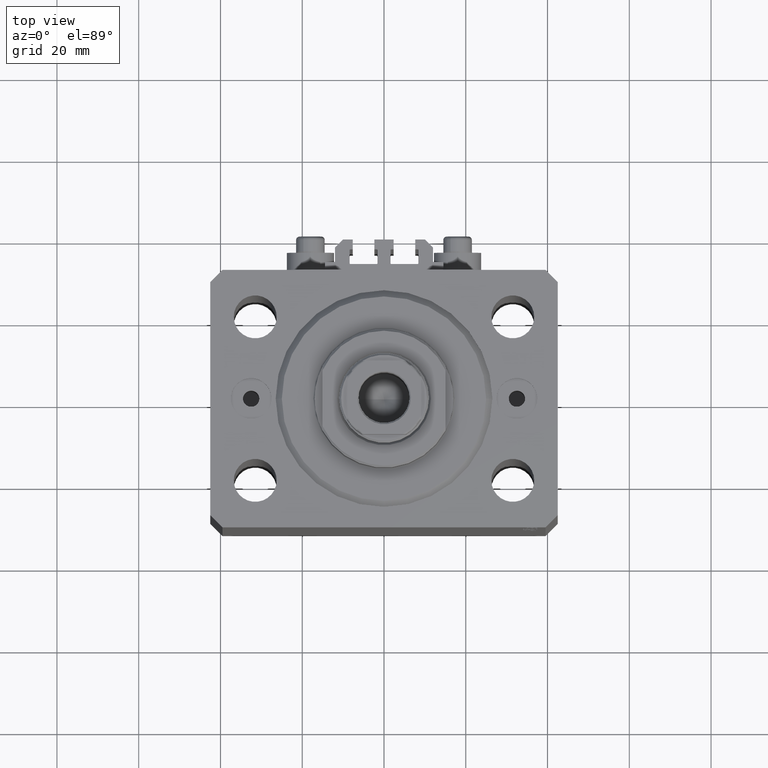
[diagram: clean part render]
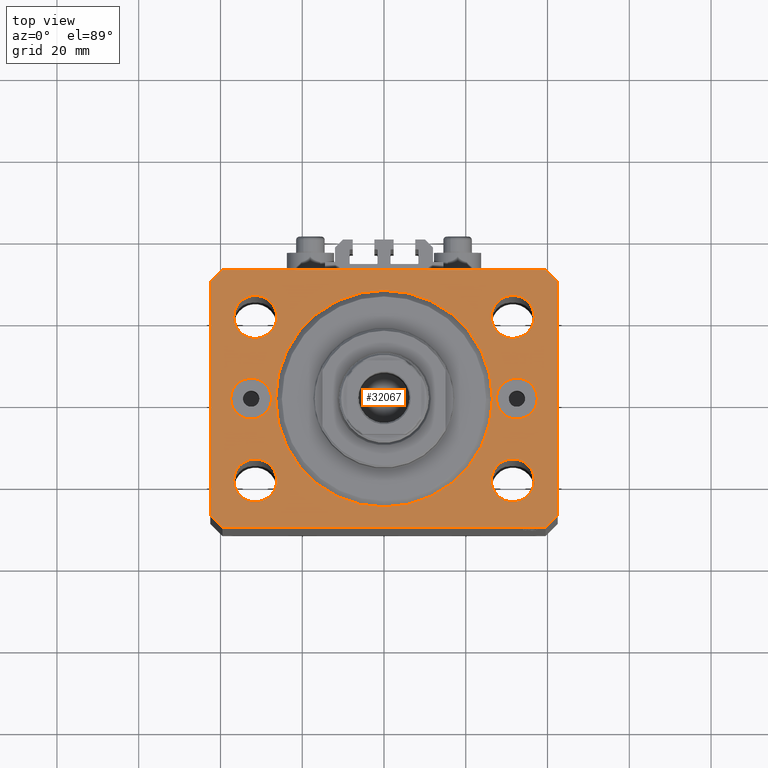
[diagram: same view with one face highlighted and labeled with its STEP entity id]
A machine part, top view. The second image highlights one B-rep face of the part: STEP entity #32067.
In plain terms, the highlighted planar face has unit normal (0, 0, 1).
Its self-contained STEP definition (entity closure, byte-faithful):
#392 = DIRECTION ( 'NONE',  ( 0.000000000000000000, -1.000000000000000000, 0.000000000000000000 ) ) ;
#770 = EDGE_CURVE ( 'NONE', #32236, #30373, #7406, .T. ) ;
#938 = VERTEX_POINT ( 'NONE', #20293 ) ;
#2301 = LINE ( 'NONE', #41471, #30841 ) ;
#2583 = FACE_BOUND ( 'NONE', #30440, .T. ) ;
#2849 = LINE ( 'NONE', #14078, #32669 ) ;
#2885 = EDGE_CURVE ( 'NONE', #13685, #13611, #2849, .T. ) ;
#2887 = DIRECTION ( 'NONE',  ( 1.000000000000000000, 0.000000000000000000, 0.000000000000000000 ) ) ;
#3045 = FACE_BOUND ( 'NONE', #31556, .T. ) ;
#3054 = AXIS2_PLACEMENT_3D ( 'NONE', #12022, #37800, #37324 ) ;
#3310 = DIRECTION ( 'NONE',  ( 0.000000000000000000, 0.000000000000000000, 1.000000000000000000 ) ) ;
#3319 = CIRCLE ( 'NONE', #21627, 5.249999999999997335 ) ;
#3467 = ORIENTED_EDGE ( 'NONE', *, *, #13510, .T. ) ;
#3515 = FACE_BOUND ( 'NONE', #9699, .T. ) ;
#4364 = DIRECTION ( 'NONE',  ( -1.000000000000000000, 0.000000000000000000, 0.000000000000000000 ) ) ;
#4750 = CARTESIAN_POINT ( 'NONE',  ( 42.50000000000000711, -28.50000000000000355, 0.000000000000000000 ) ) ;
#4973 = CARTESIAN_POINT ( 'NONE',  ( -39.50000000000000711, -31.50000000000000000, 0.000000000000000000 ) ) ;
#5253 = ORIENTED_EDGE ( 'NONE', *, *, #5370, .T. ) ;
#5370 = EDGE_CURVE ( 'NONE', #42273, #17012, #12665, .T. ) ;
#5402 = CIRCLE ( 'NONE', #32101, 26.50000000000000355 ) ;
#5526 = EDGE_CURVE ( 'NONE', #17012, #39392, #12386, .T. ) ;
#5763 = ORIENTED_EDGE ( 'NONE', *, *, #42020, .T. ) ;
#5801 = VERTEX_POINT ( 'NONE', #8492 ) ;
#6035 = DIRECTION ( 'NONE',  ( 1.000000000000000000, 0.000000000000000000, 0.000000000000000000 ) ) ;
#6063 = VERTEX_POINT ( 'NONE', #36565 ) ;
#6406 = EDGE_LOOP ( 'NONE', ( #25367, #44175 ) ) ;
#6414 = CARTESIAN_POINT ( 'NONE',  ( -39.50000000000000711, -31.50000000000000000, 0.000000000000000000 ) ) ;
#6618 = VERTEX_POINT ( 'NONE', #4750 ) ;
#6872 = CARTESIAN_POINT ( 'NONE',  ( 36.75000000000000000, 19.99999999999999289, 0.000000000000000000 ) ) ;
#7197 = EDGE_CURVE ( 'NONE', #6618, #13685, #29955, .T. ) ;
#7310 = EDGE_CURVE ( 'NONE', #10074, #16451, #20600, .T. ) ;
#7406 = CIRCLE ( 'NONE', #26478, 5.249999999999997335 ) ;
#7583 = AXIS2_PLACEMENT_3D ( 'NONE', #33662, #25790, #13696 ) ;
#7754 = CIRCLE ( 'NONE', #18459, 5.250000000000000888 ) ;
#8203 = DIRECTION ( 'NONE',  ( 1.000000000000000000, 0.000000000000000000, 0.000000000000000000 ) ) ;
#8313 = DIRECTION ( 'NONE',  ( 1.000000000000000000, 0.000000000000000000, 0.000000000000000000 ) ) ;
#8472 = CARTESIAN_POINT ( 'NONE',  ( 31.50000000000000000, 19.99999999999999289, 0.000000000000000000 ) ) ;
#8492 = CARTESIAN_POINT ( 'NONE',  ( -37.50000000000000000, 6.123233995736768255E-16, 0.000000000000000000 ) ) ;
#8653 = VERTEX_POINT ( 'NONE', #26752 ) ;
#8761 = DIRECTION ( 'NONE',  ( 0.000000000000000000, 0.000000000000000000, 1.000000000000000000 ) ) ;
#8981 = CARTESIAN_POINT ( 'NONE',  ( -39.50000000000000711, 31.50000000000000000, 0.000000000000000000 ) ) ;
#9387 = CARTESIAN_POINT ( 'NONE',  ( -42.50000000000000000, 28.50000000000000000, 0.000000000000000000 ) ) ;
#9699 = EDGE_LOOP ( 'NONE', ( #38452, #10519 ) ) ;
#9770 = EDGE_LOOP ( 'NONE', ( #24558, #40329 ) ) ;
#9976 = FACE_BOUND ( 'NONE', #6406, .T. ) ;
#10074 = VERTEX_POINT ( 'NONE', #14902 ) ;
#10213 = FACE_OUTER_BOUND ( 'NONE', #18273, .T. ) ;
#10519 = ORIENTED_EDGE ( 'NONE', *, *, #19388, .F. ) ;
#10684 = DIRECTION ( 'NONE',  ( 1.000000000000000000, 0.000000000000000000, -0.000000000000000000 ) ) ;
#10884 = CARTESIAN_POINT ( 'NONE',  ( 37.50000000000000000, 0.000000000000000000, 0.000000000000000000 ) ) ;
#11119 = DIRECTION ( 'NONE',  ( 1.000000000000000000, 0.000000000000000000, 0.000000000000000000 ) ) ;
#11737 = DIRECTION ( 'NONE',  ( 0.000000000000000000, 0.000000000000000000, 1.000000000000000000 ) ) ;
#11835 = CARTESIAN_POINT ( 'NONE',  ( 32.50000000000000000, 0.000000000000000000, 0.000000000000000000 ) ) ;
#12022 = CARTESIAN_POINT ( 'NONE',  ( -31.50000000000000000, 19.99999999999999645, 0.000000000000000000 ) ) ;
#12386 = LINE ( 'NONE', #4973, #38070 ) ;
#12507 = DIRECTION ( 'NONE',  ( 0.000000000000000000, 0.000000000000000000, 1.000000000000000000 ) ) ;
#12623 = CARTESIAN_POINT ( 'NONE',  ( 39.50000000000000711, -31.50000000000000000, 0.000000000000000000 ) ) ;
#12665 = LINE ( 'NONE', #46081, #35759 ) ;
#13380 = ORIENTED_EDGE ( 'NONE', *, *, #26023, .F. ) ;
#13510 = EDGE_CURVE ( 'NONE', #13611, #41290, #26572, .T. ) ;
#13611 = VERTEX_POINT ( 'NONE', #42072 ) ;
#13685 = VERTEX_POINT ( 'NONE', #32518 ) ;
#13690 = CARTESIAN_POINT ( 'NONE',  ( 0.000000000000000000, 0.000000000000000000, 0.000000000000000000 ) ) ;
#13696 = DIRECTION ( 'NONE',  ( 1.000000000000000000, 0.000000000000000000, 0.000000000000000000 ) ) ;
#13729 = AXIS2_PLACEMENT_3D ( 'NONE', #44669, #11737, #47116 ) ;
#13802 = CIRCLE ( 'NONE', #44284, 5.000000000000000888 ) ;
#13818 = ORIENTED_EDGE ( 'NONE', *, *, #29376, .F. ) ;
#13929 = CARTESIAN_POINT ( 'NONE',  ( -26.50000000000000355, 3.245314017740486554E-15, 0.000000000000000000 ) ) ;
#13996 = EDGE_LOOP ( 'NONE', ( #43702, #36039 ) ) ;
#14078 = CARTESIAN_POINT ( 'NONE',  ( 42.50000000000051870, 28.49999999999995381, 0.000000000000000000 ) ) ;
#14437 = CARTESIAN_POINT ( 'NONE',  ( -26.24999999999999289, -20.00000000000000355, 0.000000000000000000 ) ) ;
#14902 = CARTESIAN_POINT ( 'NONE',  ( -26.25000000000000000, 19.99999999999999645, 0.000000000000000000 ) ) ;
#15245 = AXIS2_PLACEMENT_3D ( 'NONE', #34931, #42325, #6035 ) ;
#15765 = DIRECTION ( 'NONE',  ( 0.000000000000000000, 0.000000000000000000, 1.000000000000000000 ) ) ;
#15979 = EDGE_CURVE ( 'NONE', #17800, #42273, #27539, .T. ) ;
#16085 = ORIENTED_EDGE ( 'NONE', *, *, #19652, .T. ) ;
#16152 = VERTEX_POINT ( 'NONE', #13929 ) ;
#16165 = CARTESIAN_POINT ( 'NONE',  ( -32.50000000000000000, 0.000000000000000000, 0.000000000000000000 ) ) ;
#16451 = VERTEX_POINT ( 'NONE', #26376 ) ;
#16668 = LINE ( 'NONE', #12623, #35093 ) ;
#16774 = VECTOR ( 'NONE', #44502, 1000.000000000000000 ) ;
#17012 = VERTEX_POINT ( 'NONE', #6414 ) ;
#17229 = EDGE_CURVE ( 'NONE', #5801, #8653, #27357, .T. ) ;
#17375 = FACE_BOUND ( 'NONE', #9770, .T. ) ;
#17700 = CARTESIAN_POINT ( 'NONE',  ( 26.50000000000000355, 0.000000000000000000, 0.000000000000000000 ) ) ;
#17800 = VERTEX_POINT ( 'NONE', #45817 ) ;
#18052 = DIRECTION ( 'NONE',  ( 1.000000000000000000, 0.000000000000000000, 0.000000000000000000 ) ) ;
#18078 = FACE_BOUND ( 'NONE', #27450, .T. ) ;
#18273 = EDGE_LOOP ( 'NONE', ( #3467, #5763, #35350, #5253, #36854, #16085, #32024, #30837 ) ) ;
#18367 = EDGE_CURVE ( 'NONE', #22942, #29835, #45714, .T. ) ;
#18459 = AXIS2_PLACEMENT_3D ( 'NONE', #20119, #19422, #44718 ) ;
#18704 = CARTESIAN_POINT ( 'NONE',  ( 39.50000000000056843, 31.50000000000000000, 0.000000000000000000 ) ) ;
#19388 = EDGE_CURVE ( 'NONE', #16451, #10074, #19818, .T. ) ;
#19422 = DIRECTION ( 'NONE',  ( 0.000000000000000000, 0.000000000000000000, 1.000000000000000000 ) ) ;
#19652 = EDGE_CURVE ( 'NONE', #39392, #6618, #16668, .T. ) ;
#19683 = AXIS2_PLACEMENT_3D ( 'NONE', #11835, #25458, #18052 ) ;
#19818 = CIRCLE ( 'NONE', #3054, 5.250000000000000888 ) ;
#20065 = DIRECTION ( 'NONE',  ( 0.7071067811865471286, -0.7071067811865479058, 0.000000000000000000 ) ) ;
#20119 = CARTESIAN_POINT ( 'NONE',  ( -31.49999999999999289, -20.00000000000000355, 0.000000000000000000 ) ) ;
#20293 = CARTESIAN_POINT ( 'NONE',  ( 26.25000000000000355, 19.99999999999999289, 0.000000000000000000 ) ) ;
#20600 = CIRCLE ( 'NONE', #15245, 5.250000000000000888 ) ;
#21204 = EDGE_CURVE ( 'NONE', #8653, #5801, #13802, .T. ) ;
#21430 = EDGE_CURVE ( 'NONE', #16152, #22190, #5402, .T. ) ;
#21627 = AXIS2_PLACEMENT_3D ( 'NONE', #8472, #3310, #28862 ) ;
#22140 = EDGE_CURVE ( 'NONE', #25391, #938, #38732, .T. ) ;
#22190 = VERTEX_POINT ( 'NONE', #17700 ) ;
#22335 = VECTOR ( 'NONE', #392, 1000.000000000000000 ) ;
#22942 = VERTEX_POINT ( 'NONE', #10884 ) ;
#23590 = DIRECTION ( 'NONE',  ( 0.7071067811865483499, 0.7071067811865466846, 0.000000000000000000 ) ) ;
#23628 = CARTESIAN_POINT ( 'NONE',  ( 31.49999999999999289, -20.00000000000000355, 0.000000000000000000 ) ) ;
#23632 = AXIS2_PLACEMENT_3D ( 'NONE', #28125, #36228, #10684 ) ;
#23926 = EDGE_CURVE ( 'NONE', #29835, #22942, #40269, .T. ) ;
#24558 = ORIENTED_EDGE ( 'NONE', *, *, #22140, .F. ) ;
#24670 = DIRECTION ( 'NONE',  ( 1.000000000000000000, 0.000000000000000000, 0.000000000000000000 ) ) ;
#25088 = CARTESIAN_POINT ( 'NONE',  ( 31.50000000000000000, 19.99999999999999289, 0.000000000000000000 ) ) ;
#25367 = ORIENTED_EDGE ( 'NONE', *, *, #21204, .F. ) ;
#25391 = VERTEX_POINT ( 'NONE', #6872 ) ;
#25458 = DIRECTION ( 'NONE',  ( 0.000000000000000000, -0.000000000000000000, -1.000000000000000000 ) ) ;
#25790 = DIRECTION ( 'NONE',  ( 0.000000000000000000, 0.000000000000000000, 1.000000000000000000 ) ) ;
#26023 = EDGE_CURVE ( 'NONE', #6063, #37917, #31977, .T. ) ;
#26331 = ORIENTED_EDGE ( 'NONE', *, *, #37165, .F. ) ;
#26376 = CARTESIAN_POINT ( 'NONE',  ( -36.75000000000000000, 19.99999999999999645, 0.000000000000000000 ) ) ;
#26478 = AXIS2_PLACEMENT_3D ( 'NONE', #23628, #15765, #37250 ) ;
#26544 = AXIS2_PLACEMENT_3D ( 'NONE', #25088, #28680, #2887 ) ;
#26572 = LINE ( 'NONE', #18704, #39780 ) ;
#26752 = CARTESIAN_POINT ( 'NONE',  ( -27.50000000000000000, 0.000000000000000000, 0.000000000000000000 ) ) ;
#27357 = CIRCLE ( 'NONE', #30386, 5.000000000000000888 ) ;
#27450 = EDGE_LOOP ( 'NONE', ( #28191, #13818 ) ) ;
#27539 = LINE ( 'NONE', #9387, #22335 ) ;
#28125 = CARTESIAN_POINT ( 'NONE',  ( 0.000000000000000000, 0.000000000000000000, 0.000000000000000000 ) ) ;
#28191 = ORIENTED_EDGE ( 'NONE', *, *, #770, .F. ) ;
#28444 = ORIENTED_EDGE ( 'NONE', *, *, #18367, .T. ) ;
#28639 = DIRECTION ( 'NONE',  ( -0.7071067811865356934, 0.7071067811865594521, 0.000000000000000000 ) ) ;
#28680 = DIRECTION ( 'NONE',  ( 0.000000000000000000, 0.000000000000000000, 1.000000000000000000 ) ) ;
#28835 = FACE_BOUND ( 'NONE', #13996, .T. ) ;
#28862 = DIRECTION ( 'NONE',  ( 1.000000000000000000, 0.000000000000000000, 0.000000000000000000 ) ) ;
#28930 = CIRCLE ( 'NONE', #34238, 5.249999999999997335 ) ;
#29376 = EDGE_CURVE ( 'NONE', #30373, #32236, #28930, .T. ) ;
#29503 = CARTESIAN_POINT ( 'NONE',  ( 32.50000000000000000, 0.000000000000000000, 0.000000000000000000 ) ) ;
#29835 = VERTEX_POINT ( 'NONE', #44799 ) ;
#29955 = LINE ( 'NONE', #40452, #16774 ) ;
#29963 = DIRECTION ( 'NONE',  ( 0.000000000000000000, 0.000000000000000000, 1.000000000000000000 ) ) ;
#30373 = VERTEX_POINT ( 'NONE', #46652 ) ;
#30386 = AXIS2_PLACEMENT_3D ( 'NONE', #16165, #8761, #41237 ) ;
#30440 = EDGE_LOOP ( 'NONE', ( #26331, #13380 ) ) ;
#30837 = ORIENTED_EDGE ( 'NONE', *, *, #2885, .T. ) ;
#30841 = VECTOR ( 'NONE', #38587, 1000.000000000000000 ) ;
#31556 = EDGE_LOOP ( 'NONE', ( #28444, #31886 ) ) ;
#31579 = EDGE_CURVE ( 'NONE', #22190, #16152, #44968, .T. ) ;
#31886 = ORIENTED_EDGE ( 'NONE', *, *, #23926, .T. ) ;
#31977 = CIRCLE ( 'NONE', #7583, 5.250000000000000888 ) ;
#32024 = ORIENTED_EDGE ( 'NONE', *, *, #7197, .T. ) ;
#32067 = ADVANCED_FACE ( 'NONE', ( #10213, #3515, #17375, #18078, #2583, #28835, #9976, #3045 ), #46957, .T. ) ;
#32101 = AXIS2_PLACEMENT_3D ( 'NONE', #13690, #46628, #24670 ) ;
#32236 = VERTEX_POINT ( 'NONE', #43857 ) ;
#32518 = CARTESIAN_POINT ( 'NONE',  ( 42.50000000000051870, 28.49999999999995381, 0.000000000000000000 ) ) ;
#32669 = VECTOR ( 'NONE', #28639, 1000.000000000000114 ) ;
#33662 = CARTESIAN_POINT ( 'NONE',  ( -31.49999999999999289, -20.00000000000000355, 0.000000000000000000 ) ) ;
#34238 = AXIS2_PLACEMENT_3D ( 'NONE', #45203, #12507, #8203 ) ;
#34931 = CARTESIAN_POINT ( 'NONE',  ( -31.50000000000000000, 19.99999999999999645, 0.000000000000000000 ) ) ;
#35093 = VECTOR ( 'NONE', #23590, 1000.000000000000000 ) ;
#35350 = ORIENTED_EDGE ( 'NONE', *, *, #15979, .T. ) ;
#35759 = VECTOR ( 'NONE', #20065, 1000.000000000000000 ) ;
#36039 = ORIENTED_EDGE ( 'NONE', *, *, #21430, .F. ) ;
#36228 = DIRECTION ( 'NONE',  ( 0.000000000000000000, 0.000000000000000000, 1.000000000000000000 ) ) ;
#36565 = CARTESIAN_POINT ( 'NONE',  ( -36.74999999999999289, -20.00000000000000355, 0.000000000000000000 ) ) ;
#36854 = ORIENTED_EDGE ( 'NONE', *, *, #5526, .T. ) ;
#37165 = EDGE_CURVE ( 'NONE', #37917, #6063, #7754, .T. ) ;
#37250 = DIRECTION ( 'NONE',  ( 1.000000000000000000, 0.000000000000000000, 0.000000000000000000 ) ) ;
#37324 = DIRECTION ( 'NONE',  ( 1.000000000000000000, 0.000000000000000000, 0.000000000000000000 ) ) ;
#37800 = DIRECTION ( 'NONE',  ( 0.000000000000000000, 0.000000000000000000, 1.000000000000000000 ) ) ;
#37917 = VERTEX_POINT ( 'NONE', #14437 ) ;
#38070 = VECTOR ( 'NONE', #8313, 1000.000000000000000 ) ;
#38452 = ORIENTED_EDGE ( 'NONE', *, *, #7310, .F. ) ;
#38587 = DIRECTION ( 'NONE',  ( -0.7071067811865471286, -0.7071067811865479058, 0.000000000000000000 ) ) ;
#38732 = CIRCLE ( 'NONE', #26544, 5.249999999999997335 ) ;
#39392 = VERTEX_POINT ( 'NONE', #41774 ) ;
#39780 = VECTOR ( 'NONE', #4364, 1000.000000000000000 ) ;
#40269 = CIRCLE ( 'NONE', #19683, 4.999999999999997335 ) ;
#40329 = ORIENTED_EDGE ( 'NONE', *, *, #45310, .F. ) ;
#40452 = CARTESIAN_POINT ( 'NONE',  ( 42.50000000000000711, -28.50000000000000355, 0.000000000000000000 ) ) ;
#41237 = DIRECTION ( 'NONE',  ( 1.000000000000000000, 0.000000000000000000, 0.000000000000000000 ) ) ;
#41290 = VERTEX_POINT ( 'NONE', #8981 ) ;
#41471 = CARTESIAN_POINT ( 'NONE',  ( -39.50000000000000711, 31.50000000000000000, 0.000000000000000000 ) ) ;
#41774 = CARTESIAN_POINT ( 'NONE',  ( 39.50000000000000711, -31.50000000000000000, 0.000000000000000000 ) ) ;
#42020 = EDGE_CURVE ( 'NONE', #41290, #17800, #2301, .T. ) ;
#42072 = CARTESIAN_POINT ( 'NONE',  ( 39.50000000000056843, 31.50000000000000000, 0.000000000000000000 ) ) ;
#42273 = VERTEX_POINT ( 'NONE', #44521 ) ;
#42325 = DIRECTION ( 'NONE',  ( 0.000000000000000000, 0.000000000000000000, 1.000000000000000000 ) ) ;
#43702 = ORIENTED_EDGE ( 'NONE', *, *, #31579, .F. ) ;
#43806 = CARTESIAN_POINT ( 'NONE',  ( -32.50000000000000000, 0.000000000000000000, 0.000000000000000000 ) ) ;
#43857 = CARTESIAN_POINT ( 'NONE',  ( 36.74999999999999289, -20.00000000000000355, 0.000000000000000000 ) ) ;
#44175 = ORIENTED_EDGE ( 'NONE', *, *, #17229, .F. ) ;
#44284 = AXIS2_PLACEMENT_3D ( 'NONE', #43806, #29963, #44509 ) ;
#44295 = DIRECTION ( 'NONE',  ( 0.000000000000000000, -0.000000000000000000, -1.000000000000000000 ) ) ;
#44502 = DIRECTION ( 'NONE',  ( 8.886653596232072440E-15, 1.000000000000000000, 0.000000000000000000 ) ) ;
#44509 = DIRECTION ( 'NONE',  ( 1.000000000000000000, 0.000000000000000000, 0.000000000000000000 ) ) ;
#44521 = CARTESIAN_POINT ( 'NONE',  ( -42.50000000000000000, -28.50000000000000000, 0.000000000000000000 ) ) ;
#44669 = CARTESIAN_POINT ( 'NONE',  ( 0.000000000000000000, 0.000000000000000000, 0.000000000000000000 ) ) ;
#44718 = DIRECTION ( 'NONE',  ( 1.000000000000000000, 0.000000000000000000, 0.000000000000000000 ) ) ;
#44799 = CARTESIAN_POINT ( 'NONE',  ( 27.50000000000000355, 6.123233995736762338E-16, 0.000000000000000000 ) ) ;
#44968 = CIRCLE ( 'NONE', #13729, 26.50000000000000355 ) ;
#45203 = CARTESIAN_POINT ( 'NONE',  ( 31.49999999999999289, -20.00000000000000355, 0.000000000000000000 ) ) ;
#45310 = EDGE_CURVE ( 'NONE', #938, #25391, #3319, .T. ) ;
#45714 = CIRCLE ( 'NONE', #46463, 4.999999999999997335 ) ;
#45817 = CARTESIAN_POINT ( 'NONE',  ( -42.50000000000000000, 28.50000000000000000, 0.000000000000000000 ) ) ;
#46081 = CARTESIAN_POINT ( 'NONE',  ( -42.50000000000000000, -28.50000000000000000, 0.000000000000000000 ) ) ;
#46463 = AXIS2_PLACEMENT_3D ( 'NONE', #29503, #44295, #11119 ) ;
#46628 = DIRECTION ( 'NONE',  ( 0.000000000000000000, 0.000000000000000000, 1.000000000000000000 ) ) ;
#46652 = CARTESIAN_POINT ( 'NONE',  ( 26.24999999999999645, -20.00000000000000355, 0.000000000000000000 ) ) ;
#46957 = PLANE ( 'NONE',  #23632 ) ;
#47116 = DIRECTION ( 'NONE',  ( 1.000000000000000000, 0.000000000000000000, 0.000000000000000000 ) ) ;